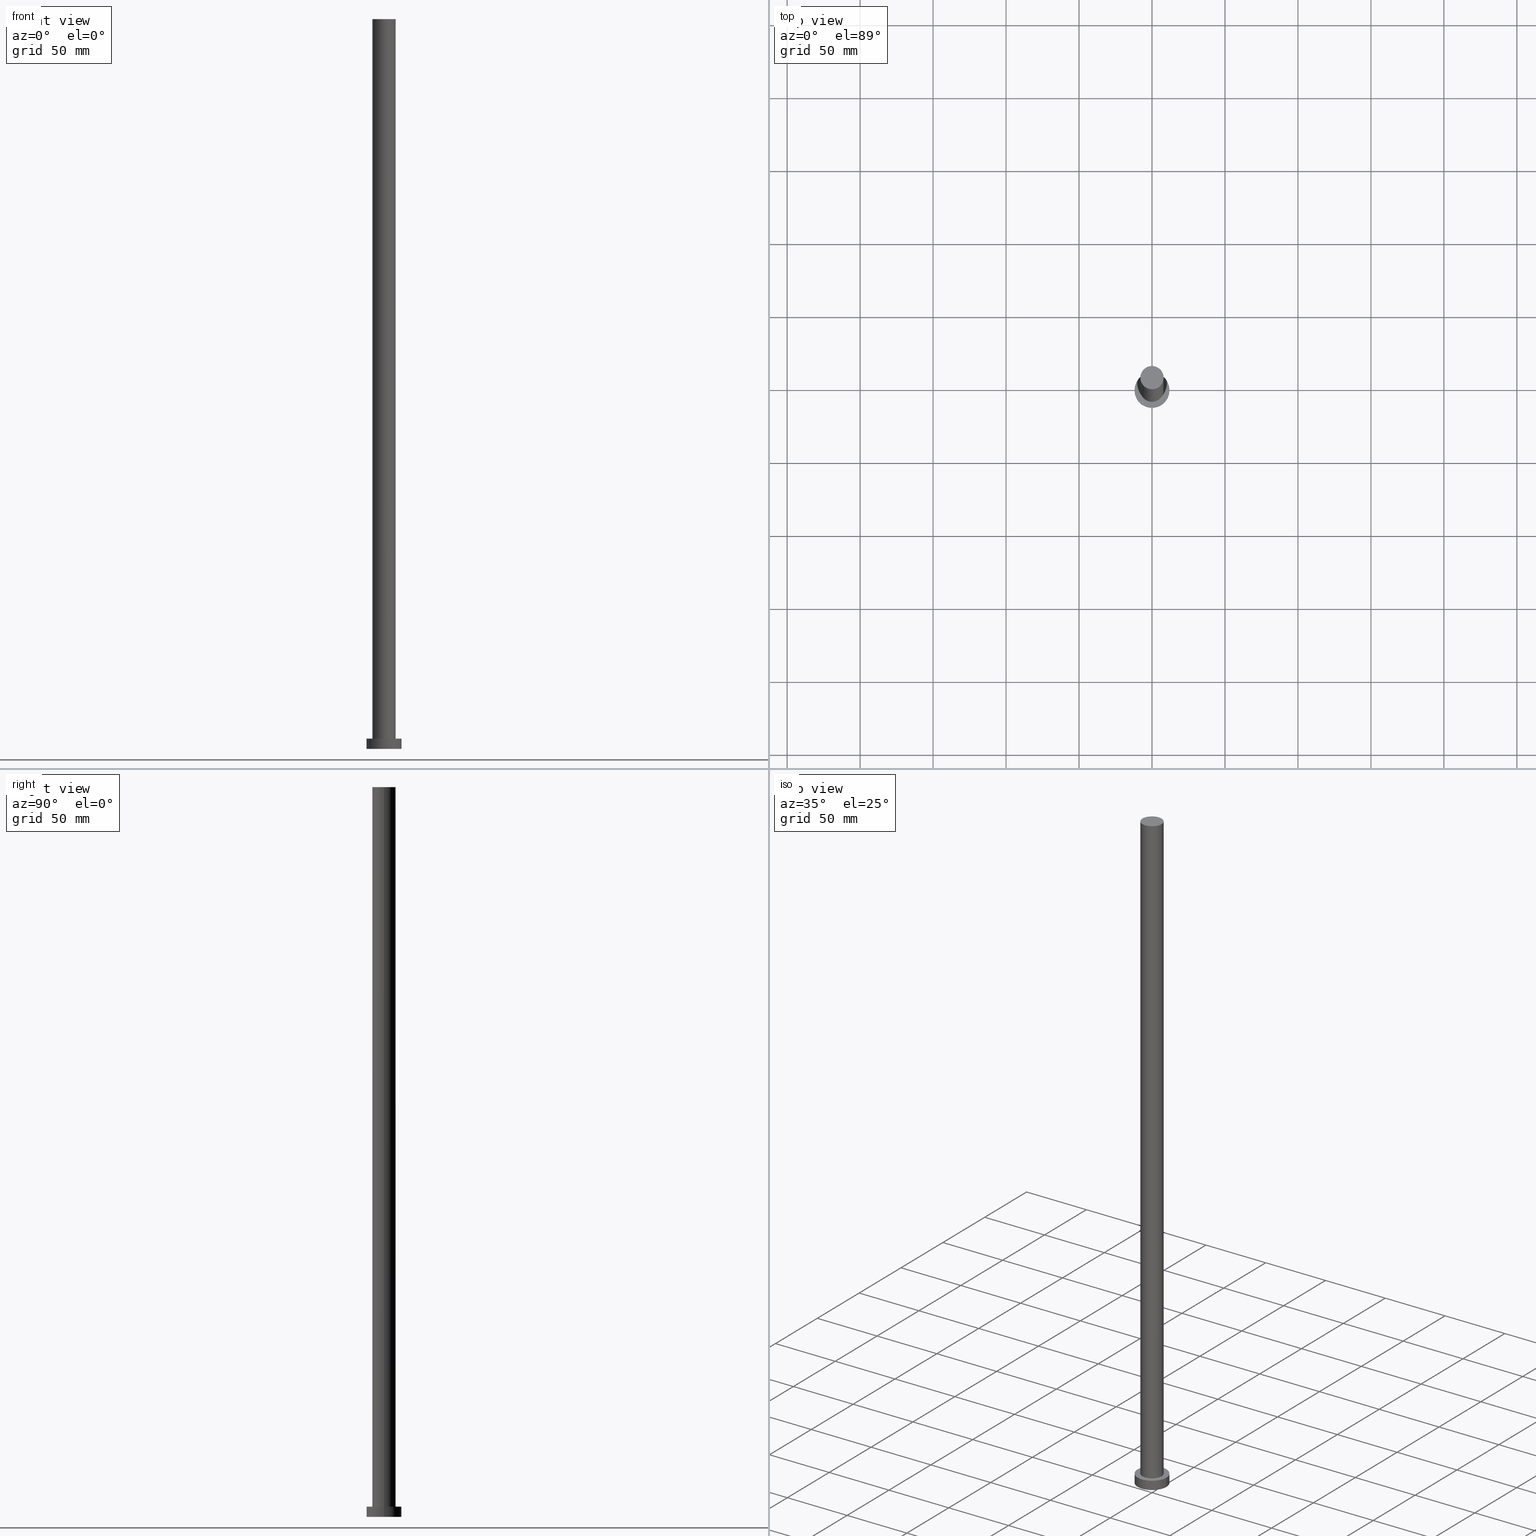
[diagram: canonical four-view strip — front | top / right | iso, engineering-drawing reading convention]
A machine part, canonical four-view strip (front | top / right | iso — engineering-drawing reading convention). The complete STEP part file that produces these views, byte-faithful:
ISO-10303-21;
HEADER;
FILE_DESCRIPTION (( 'STEP AP203' ),
    '1' );
FILE_NAME ('dc55.STEP',
    '2023-02-13T09:43:24',
    ( '' ),
    ( '' ),
    'SwSTEP 2.0',
    'SolidWorks 2019',
    '' );
FILE_SCHEMA (( 'CONFIG_CONTROL_DESIGN' ));
ENDSEC;

DATA;
#1 = ORIENTED_EDGE ( 'NONE', *, *, #232, .F. ) ;
#2 = ORIENTED_EDGE ( 'NONE', *, *, #178, .T. ) ;
#3 = CARTESIAN_POINT ( 'NONE',  ( 8.000000000000000000, 9.797174393178825657E-16, 500.0000000000000000 ) ) ;
#4 = VERTEX_POINT ( 'NONE', #94 ) ;
#5 = DIRECTION ( 'NONE',  ( -1.000000000000000000, 0.000000000000000000, 0.000000000000000000 ) ) ;
#6 = ADVANCED_FACE ( 'NONE', ( #187 ), #207, .T. ) ;
#7 = CC_DESIGN_SECURITY_CLASSIFICATION ( #123, ( #56 ) ) ;
#8 = EDGE_LOOP ( 'NONE', ( #58, #61 ) ) ;
#9 = PLANE ( 'NONE',  #29 ) ;
#10 = APPROVAL_DATE_TIME ( #208, #89 ) ;
#11 = FACE_OUTER_BOUND ( 'NONE', #79, .T. ) ;
#12 = PERSON_AND_ORGANIZATION ( #45, #136 ) ;
#13 = DIRECTION ( 'NONE',  ( 1.000000000000000000, 0.000000000000000000, -0.000000000000000000 ) ) ;
#14 = APPROVAL_STATUS ( 'not_yet_approved' ) ;
#15 = CIRCLE ( 'NONE', #186, 12.00000000000000178 ) ;
#16 = CARTESIAN_POINT ( 'NONE',  ( 0.000000000000000000, 0.000000000000000000, 500.0000000000000000 ) ) ;
#17 = CARTESIAN_POINT ( 'NONE',  ( -8.000000000000000000, 0.000000000000000000, 7.000000000000000000 ) ) ;
#18 = PERSON_AND_ORGANIZATION_ROLE ( 'creator' ) ;
#19 = COORDINATED_UNIVERSAL_TIME_OFFSET ( 1, 0, .AHEAD. ) ;
#20 = DATE_AND_TIME ( #253, #27 ) ;
#21 = EDGE_CURVE ( 'NONE', #167, #112, #229, .T. ) ;
#22 = CLOSED_SHELL ( 'NONE', ( #6, #35, #144, #174, #125, #163, #130 ) ) ;
#23 = ORIENTED_EDGE ( 'NONE', *, *, #28, .F. ) ;
#24 = ORIENTED_EDGE ( 'NONE', *, *, #178, .F. ) ;
#25 = CARTESIAN_POINT ( 'NONE',  ( 8.000000000000000000, 9.797174393178825657E-16, 500.0000000000000000 ) ) ;
#26 =( NAMED_UNIT ( * ) SI_UNIT ( $, .STERADIAN. ) SOLID_ANGLE_UNIT ( ) );
#27 = LOCAL_TIME ( 10, 43, 24.00000000000000000, #76 ) ;
#28 = EDGE_CURVE ( 'NONE', #80, #245, #248, .T. ) ;
#29 = AXIS2_PLACEMENT_3D ( 'NONE', #135, #67, #13 ) ;
#30 = LINE ( 'NONE', #88, #254 ) ;
#31 = APPLICATION_PROTOCOL_DEFINITION ( 'international standard', 'config_control_design', 1994, #71 ) ;
#32 = ORIENTED_EDGE ( 'NONE', *, *, #237, .F. ) ;
#33 = APPROVAL_STATUS ( 'not_yet_approved' ) ;
#34 = CIRCLE ( 'NONE', #175, 12.00000000000000178 ) ;
#35 = ADVANCED_FACE ( 'NONE', ( #209 ), #196, .T. ) ;
#36 = AXIS2_PLACEMENT_3D ( 'NONE', #81, #65, #230 ) ;
#37 = CARTESIAN_POINT ( 'NONE',  ( 0.000000000000000000, 0.000000000000000000, 7.000000000000000000 ) ) ;
#38 = ORIENTED_EDGE ( 'NONE', *, *, #77, .T. ) ;
#39 = CALENDAR_DATE ( 2023, 13, 2 ) ;
#40 = CARTESIAN_POINT ( 'NONE',  ( 0.000000000000000000, 0.000000000000000000, 500.0000000000000000 ) ) ;
#41 = EDGE_LOOP ( 'NONE', ( #134, #137 ) ) ;
#42 = CIRCLE ( 'NONE', #59, 12.00000000000000178 ) ;
#43 = LOCAL_TIME ( 10, 43, 24.00000000000000000, #68 ) ;
#44 = SECURITY_CLASSIFICATION_LEVEL ( 'unclassified' ) ;
#45 = PERSON ( 'NEUR�EN�', 'NEUR�EN�', 'NEUR�EN�', ('NEUR�EN�'), ('NEUR�EN�'), ('NEUR�EN�') ) ;
#46 = DIRECTION ( 'NONE',  ( 1.000000000000000000, 0.000000000000000000, 0.000000000000000000 ) ) ;
#47 = AXIS2_PLACEMENT_3D ( 'NONE', #37, #103, #114 ) ;
#48 = APPROVAL_PERSON_ORGANIZATION ( #146, #89, #118 ) ;
#49 = DIRECTION ( 'NONE',  ( -0.000000000000000000, -0.000000000000000000, -1.000000000000000000 ) ) ;
#50 = CARTESIAN_POINT ( 'NONE',  ( 0.000000000000000000, 0.000000000000000000, 0.000000000000000000 ) ) ;
#51 = CARTESIAN_POINT ( 'NONE',  ( 0.000000000000000000, 0.000000000000000000, 7.000000000000000000 ) ) ;
#52 = VECTOR ( 'NONE', #231, 1000.000000000000000 ) ;
#53 = ORIENTED_EDGE ( 'NONE', *, *, #198, .F. ) ;
#54 = APPROVAL_STATUS ( 'not_yet_approved' ) ;
#55 = DATE_AND_TIME ( #132, #182 ) ;
#56 = PRODUCT_DEFINITION_FORMATION_WITH_SPECIFIED_SOURCE ( 'LIBOVOLN�', '', #217, .NOT_KNOWN. ) ;
#57 = APPLICATION_CONTEXT ( 'configuration controlled 3d designs of mechanical parts and assemblies' ) ;
#58 = ORIENTED_EDGE ( 'NONE', *, *, #243, .T. ) ;
#59 = AXIS2_PLACEMENT_3D ( 'NONE', #50, #250, #97 ) ;
#60 = CC_DESIGN_APPROVAL ( #233, ( #56 ) ) ;
#61 = ORIENTED_EDGE ( 'NONE', *, *, #128, .T. ) ;
#62 = PLANE ( 'NONE',  #185 ) ;
#63 = PERSON_AND_ORGANIZATION ( #45, #136 ) ;
#64 = ORIENTED_EDGE ( 'NONE', *, *, #120, .T. ) ;
#65 = DIRECTION ( 'NONE',  ( -0.000000000000000000, -0.000000000000000000, -1.000000000000000000 ) ) ;
#66 = DATE_AND_TIME ( #39, #43 ) ;
#67 = DIRECTION ( 'NONE',  ( 0.000000000000000000, 0.000000000000000000, 1.000000000000000000 ) ) ;
#68 = COORDINATED_UNIVERSAL_TIME_OFFSET ( 1, 0, .AHEAD. ) ;
#69 = LINE ( 'NONE', #126, #216 ) ;
#70 = CARTESIAN_POINT ( 'NONE',  ( 12.00000000000000178, 1.469576158976824144E-15, 7.000000000000000000 ) ) ;
#71 = APPLICATION_CONTEXT ( 'configuration controlled 3d designs of mechanical parts and assemblies' ) ;
#72 = ORIENTED_EDGE ( 'NONE', *, *, #159, .T. ) ;
#73 = DATE_AND_TIME ( #93, #105 ) ;
#74 = AXIS2_PLACEMENT_3D ( 'NONE', #226, #117, #220 ) ;
#75 = CC_DESIGN_APPROVAL ( #89, ( #123 ) ) ;
#76 = COORDINATED_UNIVERSAL_TIME_OFFSET ( 1, 0, .AHEAD. ) ;
#77 = EDGE_CURVE ( 'NONE', #161, #152, #42, .T. ) ;
#78 = CIRCLE ( 'NONE', #47, 8.000000000000000000 ) ;
#79 = EDGE_LOOP ( 'NONE', ( #1, #82 ) ) ;
#80 = VERTEX_POINT ( 'NONE', #214 ) ;
#81 = CARTESIAN_POINT ( 'NONE',  ( 0.000000000000000000, 0.000000000000000000, 7.000000000000000000 ) ) ;
#82 = ORIENTED_EDGE ( 'NONE', *, *, #77, .F. ) ;
#83 = CARTESIAN_POINT ( 'NONE',  ( 0.000000000000000000, 0.000000000000000000, 500.0000000000000000 ) ) ;
#84 = DIRECTION ( 'NONE',  ( 1.000000000000000000, 0.000000000000000000, 0.000000000000000000 ) ) ;
#85 = CARTESIAN_POINT ( 'NONE',  ( 0.000000000000000000, 0.000000000000000000, 500.0000000000000000 ) ) ;
#86 = APPROVAL ( #54, 'NEUR�EN�' ) ;
#87 = CARTESIAN_POINT ( 'NONE',  ( 0.000000000000000000, 0.000000000000000000, 7.000000000000000000 ) ) ;
#88 = CARTESIAN_POINT ( 'NONE',  ( -12.00000000000000178, 0.000000000000000000, 7.000000000000000000 ) ) ;
#89 = APPROVAL ( #14, 'NEUR�EN�' ) ;
#90 = DIRECTION ( 'NONE',  ( 0.000000000000000000, 0.000000000000000000, 1.000000000000000000 ) ) ;
#91 = EDGE_CURVE ( 'NONE', #112, #179, #197, .T. ) ;
#92 = APPROVAL_ROLE ( '' ) ;
#93 = CALENDAR_DATE ( 2023, 13, 2 ) ;
#94 = CARTESIAN_POINT ( 'NONE',  ( -8.000000000000000000, 0.000000000000000000, 500.0000000000000000 ) ) ;
#95 = CC_DESIGN_PERSON_AND_ORGANIZATION_ASSIGNMENT ( #12, #100, ( #56 ) ) ;
#96 = EDGE_LOOP ( 'NONE', ( #162, #234 ) ) ;
#97 = DIRECTION ( 'NONE',  ( 1.000000000000000000, 0.000000000000000000, 0.000000000000000000 ) ) ;
#98 = SHAPE_DEFINITION_REPRESENTATION ( #115, #151 ) ;
#99 = DIRECTION ( 'NONE',  ( 0.000000000000000000, 0.000000000000000000, 1.000000000000000000 ) ) ;
#100 = PERSON_AND_ORGANIZATION_ROLE ( 'design_supplier' ) ;
#101 = DATE_TIME_ROLE ( 'classification_date' ) ;
#102 = FACE_BOUND ( 'NONE', #96, .T. ) ;
#103 = DIRECTION ( 'NONE',  ( 0.000000000000000000, 0.000000000000000000, 1.000000000000000000 ) ) ;
#104 = AXIS2_PLACEMENT_3D ( 'NONE', #213, #189, #5 ) ;
#105 = LOCAL_TIME ( 10, 43, 24.00000000000000000, #131 ) ;
#106 = DIRECTION ( 'NONE',  ( 0.000000000000000000, 0.000000000000000000, 1.000000000000000000 ) ) ;
#107 = CC_DESIGN_PERSON_AND_ORGANIZATION_ASSIGNMENT ( #244, #140, ( #56 ) ) ;
#108 = DIRECTION ( 'NONE',  ( 0.000000000000000000, 0.000000000000000000, 1.000000000000000000 ) ) ;
#109 = DESIGN_CONTEXT ( 'detailed design', #71, 'design' ) ;
#110 = CC_DESIGN_PERSON_AND_ORGANIZATION_ASSIGNMENT ( #63, #247, ( #123 ) ) ;
#111 = APPROVAL_ROLE ( '' ) ;
#112 = VERTEX_POINT ( 'NONE', #246 ) ;
#113 = CC_DESIGN_APPROVAL ( #86, ( #212 ) ) ;
#114 = DIRECTION ( 'NONE',  ( 1.000000000000000000, 0.000000000000000000, 0.000000000000000000 ) ) ;
#115 = PRODUCT_DEFINITION_SHAPE ( 'NONE', 'NONE',  #212 ) ;
#116 = DIRECTION ( 'NONE',  ( -0.000000000000000000, -0.000000000000000000, -1.000000000000000000 ) ) ;
#117 = DIRECTION ( 'NONE',  ( 0.000000000000000000, 0.000000000000000000, 1.000000000000000000 ) ) ;
#118 = APPROVAL_ROLE ( '' ) ;
#119 = CARTESIAN_POINT ( 'NONE',  ( 0.000000000000000000, 0.000000000000000000, 7.000000000000000000 ) ) ;
#120 = EDGE_CURVE ( 'NONE', #179, #112, #78, .T. ) ;
#121 = CARTESIAN_POINT ( 'NONE',  ( -12.00000000000000178, 0.000000000000000000, 0.000000000000000000 ) ) ;
#122 = ORIENTED_EDGE ( 'NONE', *, *, #243, .F. ) ;
#123 = SECURITY_CLASSIFICATION ( '', '', #44 ) ;
#124 = FACE_OUTER_BOUND ( 'NONE', #160, .T. ) ;
#125 = ADVANCED_FACE ( 'NONE', ( #11 ), #9, .F. ) ;
#126 = CARTESIAN_POINT ( 'NONE',  ( 12.00000000000000178, 1.469576158976824144E-15, 7.000000000000000000 ) ) ;
#127 = AXIS2_PLACEMENT_3D ( 'NONE', #191, #169, #242 ) ;
#128 = EDGE_CURVE ( 'NONE', #167, #4, #203, .T. ) ;
#129 = PERSON_AND_ORGANIZATION ( #45, #136 ) ;
#130 = ADVANCED_FACE ( 'NONE', ( #172 ), #62, .T. ) ;
#131 = COORDINATED_UNIVERSAL_TIME_OFFSET ( 1, 0, .AHEAD. ) ;
#132 = CALENDAR_DATE ( 2023, 13, 2 ) ;
#133 = ORIENTED_EDGE ( 'NONE', *, *, #91, .T. ) ;
#134 = ORIENTED_EDGE ( 'NONE', *, *, #28, .T. ) ;
#135 = CARTESIAN_POINT ( 'NONE',  ( 0.000000000000000000, 0.000000000000000000, 0.000000000000000000 ) ) ;
#136 = ORGANIZATION ( 'NEUR�EN�', 'NEUR�EN�', '' ) ;
#137 = ORIENTED_EDGE ( 'NONE', *, *, #237, .T. ) ;
#138 = PLANE ( 'NONE',  #74 ) ;
#139 = CC_DESIGN_DATE_AND_TIME_ASSIGNMENT ( #66, #101, ( #123 ) ) ;
#140 = PERSON_AND_ORGANIZATION_ROLE ( 'creator' ) ;
#141 = DIRECTION ( 'NONE',  ( -0.000000000000000000, -0.000000000000000000, -1.000000000000000000 ) ) ;
#142 = MANIFOLD_SOLID_BREP ( 'P�idat vysunut�m3', #22 ) ;
#143 = CARTESIAN_POINT ( 'NONE',  ( -8.000000000000000000, 0.000000000000000000, 500.0000000000000000 ) ) ;
#144 = ADVANCED_FACE ( 'NONE', ( #227 ), #145, .T. ) ;
#145 = CYLINDRICAL_SURFACE ( 'NONE', #36, 12.00000000000000178 ) ;
#146 = PERSON_AND_ORGANIZATION ( #45, #136 ) ;
#147 = AXIS2_PLACEMENT_3D ( 'NONE', #119, #99, #165 ) ;
#148 =( LENGTH_UNIT ( ) NAMED_UNIT ( * ) SI_UNIT ( .MILLI., .METRE. ) );
#149 = CC_DESIGN_PERSON_AND_ORGANIZATION_ASSIGNMENT ( #156, #18, ( #212 ) ) ;
#150 = DIRECTION ( 'NONE',  ( 1.000000000000000000, 0.000000000000000000, 0.000000000000000000 ) ) ;
#151 = ADVANCED_BREP_SHAPE_REPRESENTATION ( 'dc55', ( #142, #249 ), #155 ) ;
#152 = VERTEX_POINT ( 'NONE', #121 ) ;
#153 = CC_DESIGN_DATE_AND_TIME_ASSIGNMENT ( #73, #202, ( #212 ) ) ;
#154 = CARTESIAN_POINT ( 'NONE',  ( 0.000000000000000000, 0.000000000000000000, 0.000000000000000000 ) ) ;
#155 =( GEOMETRIC_REPRESENTATION_CONTEXT ( 3 ) GLOBAL_UNCERTAINTY_ASSIGNED_CONTEXT ( ( #176 ) ) GLOBAL_UNIT_ASSIGNED_CONTEXT ( ( #148, #219, #26 ) ) REPRESENTATION_CONTEXT ( 'NONE', 'WORKASPACE' ) );
#156 = PERSON_AND_ORGANIZATION ( #45, #136 ) ;
#157 = DIRECTION ( 'NONE',  ( 1.000000000000000000, 0.000000000000000000, 0.000000000000000000 ) ) ;
#158 = AXIS2_PLACEMENT_3D ( 'NONE', #87, #173, #218 ) ;
#159 = EDGE_CURVE ( 'NONE', #4, #179, #210, .T. ) ;
#160 = EDGE_LOOP ( 'NONE', ( #201, #122, #72, #64 ) ) ;
#161 = VERTEX_POINT ( 'NONE', #164 ) ;
#162 = ORIENTED_EDGE ( 'NONE', *, *, #120, .F. ) ;
#163 = ADVANCED_FACE ( 'NONE', ( #124 ), #168, .T. ) ;
#164 = CARTESIAN_POINT ( 'NONE',  ( 12.00000000000000178, 1.469576158976824144E-15, 0.000000000000000000 ) ) ;
#165 = DIRECTION ( 'NONE',  ( 1.000000000000000000, 0.000000000000000000, 0.000000000000000000 ) ) ;
#166 = DIRECTION ( 'NONE',  ( 1.000000000000000000, 0.000000000000000000, -0.000000000000000000 ) ) ;
#167 = VERTEX_POINT ( 'NONE', #25 ) ;
#168 = CYLINDRICAL_SURFACE ( 'NONE', #104, 8.000000000000000000 ) ;
#169 = DIRECTION ( 'NONE',  ( 0.000000000000000000, 0.000000000000000000, 1.000000000000000000 ) ) ;
#170 = AXIS2_PLACEMENT_3D ( 'NONE', #85, #193, #84 ) ;
#171 = LOCAL_TIME ( 10, 43, 24.00000000000000000, #228 ) ;
#172 = FACE_OUTER_BOUND ( 'NONE', #8, .T. ) ;
#173 = DIRECTION ( 'NONE',  ( -0.000000000000000000, -0.000000000000000000, -1.000000000000000000 ) ) ;
#174 = ADVANCED_FACE ( 'NONE', ( #102, #192 ), #138, .T. ) ;
#175 = AXIS2_PLACEMENT_3D ( 'NONE', #215, #106, #252 ) ;
#176 = UNCERTAINTY_MEASURE_WITH_UNIT (LENGTH_MEASURE( 1.000000000000000082E-05 ), #148, 'distance_accuracy_value', 'NONE');
#177 = DIRECTION ( 'NONE',  ( -0.000000000000000000, -0.000000000000000000, -1.000000000000000000 ) ) ;
#178 = EDGE_CURVE ( 'NONE', #80, #152, #30, .T. ) ;
#179 = VERTEX_POINT ( 'NONE', #17 ) ;
#180 = MECHANICAL_CONTEXT ( 'NONE', #57, 'mechanical' ) ;
#181 = AXIS2_PLACEMENT_3D ( 'NONE', #40, #141, #239 ) ;
#182 = LOCAL_TIME ( 10, 43, 24.00000000000000000, #19 ) ;
#183 = PERSON_AND_ORGANIZATION ( #45, #136 ) ;
#184 = APPROVAL_DATE_TIME ( #20, #86 ) ;
#185 = AXIS2_PLACEMENT_3D ( 'NONE', #83, #224, #166 ) ;
#186 = AXIS2_PLACEMENT_3D ( 'NONE', #51, #108, #46 ) ;
#187 = FACE_OUTER_BOUND ( 'NONE', #223, .T. ) ;
#188 = ORIENTED_EDGE ( 'NONE', *, *, #198, .T. ) ;
#189 = DIRECTION ( 'NONE',  ( -0.000000000000000000, -0.000000000000000000, -1.000000000000000000 ) ) ;
#190 = EDGE_LOOP ( 'NONE', ( #32, #188, #38, #24 ) ) ;
#191 = CARTESIAN_POINT ( 'NONE',  ( 0.000000000000000000, 0.000000000000000000, 7.000000000000000000 ) ) ;
#192 = FACE_OUTER_BOUND ( 'NONE', #41, .T. ) ;
#193 = DIRECTION ( 'NONE',  ( 0.000000000000000000, 0.000000000000000000, 1.000000000000000000 ) ) ;
#194 = APPROVAL_DATE_TIME ( #55, #233 ) ;
#195 = AXIS2_PLACEMENT_3D ( 'NONE', #16, #199, #150 ) ;
#196 = CYLINDRICAL_SURFACE ( 'NONE', #158, 12.00000000000000178 ) ;
#197 = CIRCLE ( 'NONE', #127, 8.000000000000000000 ) ;
#198 = EDGE_CURVE ( 'NONE', #245, #161, #69, .T. ) ;
#199 = DIRECTION ( 'NONE',  ( 0.000000000000000000, 0.000000000000000000, 1.000000000000000000 ) ) ;
#200 = APPLICATION_PROTOCOL_DEFINITION ( 'international standard', 'config_control_design', 1994, #57 ) ;
#201 = ORIENTED_EDGE ( 'NONE', *, *, #21, .F. ) ;
#202 = DATE_TIME_ROLE ( 'creation_date' ) ;
#203 = CIRCLE ( 'NONE', #170, 8.000000000000000000 ) ;
#204 = PRODUCT_RELATED_PRODUCT_CATEGORY ( 'detail', '', ( #217 ) ) ;
#205 = PERSON_AND_ORGANIZATION_ROLE ( 'design_owner' ) ;
#206 = ORIENTED_EDGE ( 'NONE', *, *, #159, .F. ) ;
#207 = CYLINDRICAL_SURFACE ( 'NONE', #181, 8.000000000000000000 ) ;
#208 = DATE_AND_TIME ( #238, #171 ) ;
#209 = FACE_OUTER_BOUND ( 'NONE', #190, .T. ) ;
#210 = LINE ( 'NONE', #143, #52 ) ;
#211 = APPROVAL_PERSON_ORGANIZATION ( #183, #233, #111 ) ;
#212 = PRODUCT_DEFINITION ( 'NEZN�M�', '', #56, #109 ) ;
#213 = CARTESIAN_POINT ( 'NONE',  ( 0.000000000000000000, 0.000000000000000000, 500.0000000000000000 ) ) ;
#214 = CARTESIAN_POINT ( 'NONE',  ( -12.00000000000000178, 0.000000000000000000, 7.000000000000000000 ) ) ;
#215 = CARTESIAN_POINT ( 'NONE',  ( 0.000000000000000000, 0.000000000000000000, 0.000000000000000000 ) ) ;
#216 = VECTOR ( 'NONE', #177, 1000.000000000000000 ) ;
#217 = PRODUCT ( 'dc55', 'dc55', '', ( #180 ) ) ;
#218 = DIRECTION ( 'NONE',  ( -1.000000000000000000, 0.000000000000000000, 0.000000000000000000 ) ) ;
#219 =( NAMED_UNIT ( * ) PLANE_ANGLE_UNIT ( ) SI_UNIT ( $, .RADIAN. ) );
#220 = DIRECTION ( 'NONE',  ( 1.000000000000000000, 0.000000000000000000, -0.000000000000000000 ) ) ;
#221 = EDGE_LOOP ( 'NONE', ( #53, #23, #2, #225 ) ) ;
#222 = ORIENTED_EDGE ( 'NONE', *, *, #21, .T. ) ;
#223 = EDGE_LOOP ( 'NONE', ( #241, #222, #133, #206 ) ) ;
#224 = DIRECTION ( 'NONE',  ( 0.000000000000000000, 0.000000000000000000, 1.000000000000000000 ) ) ;
#225 = ORIENTED_EDGE ( 'NONE', *, *, #232, .T. ) ;
#226 = CARTESIAN_POINT ( 'NONE',  ( 0.000000000000000000, 0.000000000000000000, 7.000000000000000000 ) ) ;
#227 = FACE_OUTER_BOUND ( 'NONE', #221, .T. ) ;
#228 = COORDINATED_UNIVERSAL_TIME_OFFSET ( 1, 0, .AHEAD. ) ;
#229 = LINE ( 'NONE', #3, #240 ) ;
#230 = DIRECTION ( 'NONE',  ( -1.000000000000000000, 0.000000000000000000, 0.000000000000000000 ) ) ;
#231 = DIRECTION ( 'NONE',  ( -0.000000000000000000, -0.000000000000000000, -1.000000000000000000 ) ) ;
#232 = EDGE_CURVE ( 'NONE', #152, #161, #34, .T. ) ;
#233 = APPROVAL ( #33, 'NEUR�EN�' ) ;
#234 = ORIENTED_EDGE ( 'NONE', *, *, #91, .F. ) ;
#235 = PERSON_AND_ORGANIZATION ( #45, #136 ) ;
#236 = CIRCLE ( 'NONE', #195, 8.000000000000000000 ) ;
#237 = EDGE_CURVE ( 'NONE', #245, #80, #15, .T. ) ;
#238 = CALENDAR_DATE ( 2023, 13, 2 ) ;
#239 = DIRECTION ( 'NONE',  ( -1.000000000000000000, 0.000000000000000000, 0.000000000000000000 ) ) ;
#240 = VECTOR ( 'NONE', #116, 1000.000000000000000 ) ;
#241 = ORIENTED_EDGE ( 'NONE', *, *, #128, .F. ) ;
#242 = DIRECTION ( 'NONE',  ( 1.000000000000000000, 0.000000000000000000, 0.000000000000000000 ) ) ;
#243 = EDGE_CURVE ( 'NONE', #4, #167, #236, .T. ) ;
#244 = PERSON_AND_ORGANIZATION ( #45, #136 ) ;
#245 = VERTEX_POINT ( 'NONE', #70 ) ;
#246 = CARTESIAN_POINT ( 'NONE',  ( 8.000000000000000000, 9.797174393178825657E-16, 7.000000000000000000 ) ) ;
#247 = PERSON_AND_ORGANIZATION_ROLE ( 'classification_officer' ) ;
#248 = CIRCLE ( 'NONE', #147, 12.00000000000000178 ) ;
#249 = AXIS2_PLACEMENT_3D ( 'NONE', #154, #90, #157 ) ;
#250 = DIRECTION ( 'NONE',  ( 0.000000000000000000, 0.000000000000000000, 1.000000000000000000 ) ) ;
#251 = CC_DESIGN_PERSON_AND_ORGANIZATION_ASSIGNMENT ( #129, #205, ( #217 ) ) ;
#252 = DIRECTION ( 'NONE',  ( 1.000000000000000000, 0.000000000000000000, 0.000000000000000000 ) ) ;
#253 = CALENDAR_DATE ( 2023, 13, 2 ) ;
#254 = VECTOR ( 'NONE', #49, 1000.000000000000000 ) ;
#255 = APPROVAL_PERSON_ORGANIZATION ( #235, #86, #92 ) ;
ENDSEC;
END-ISO-10303-21;
